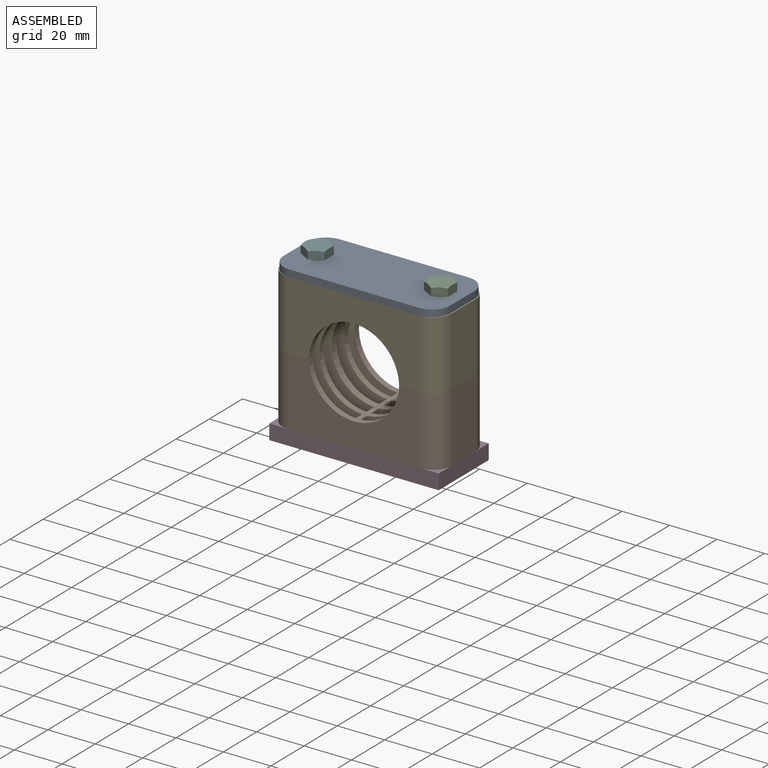
[diagram: assembled view]
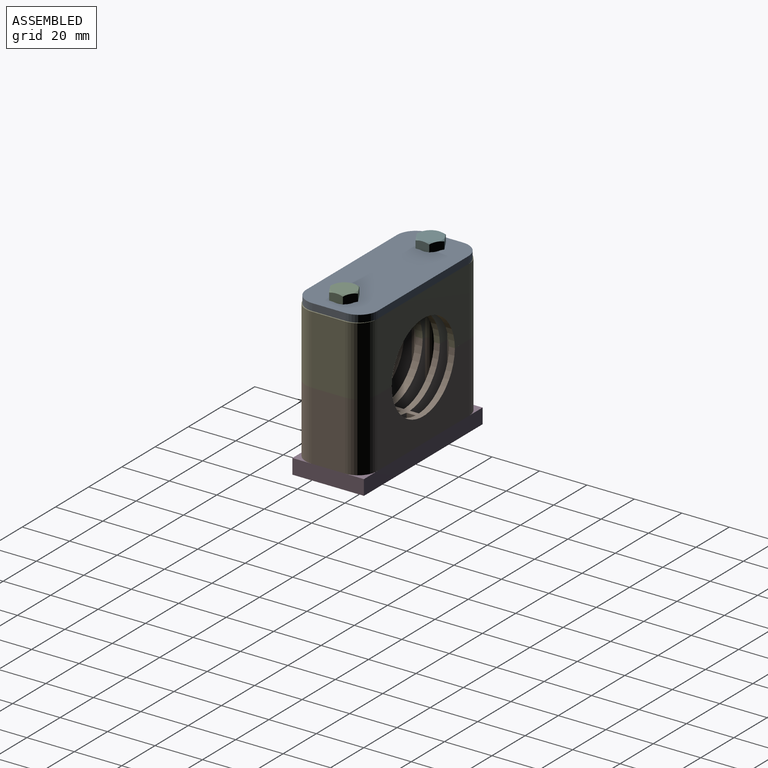
[diagram: assembled view, second angle]
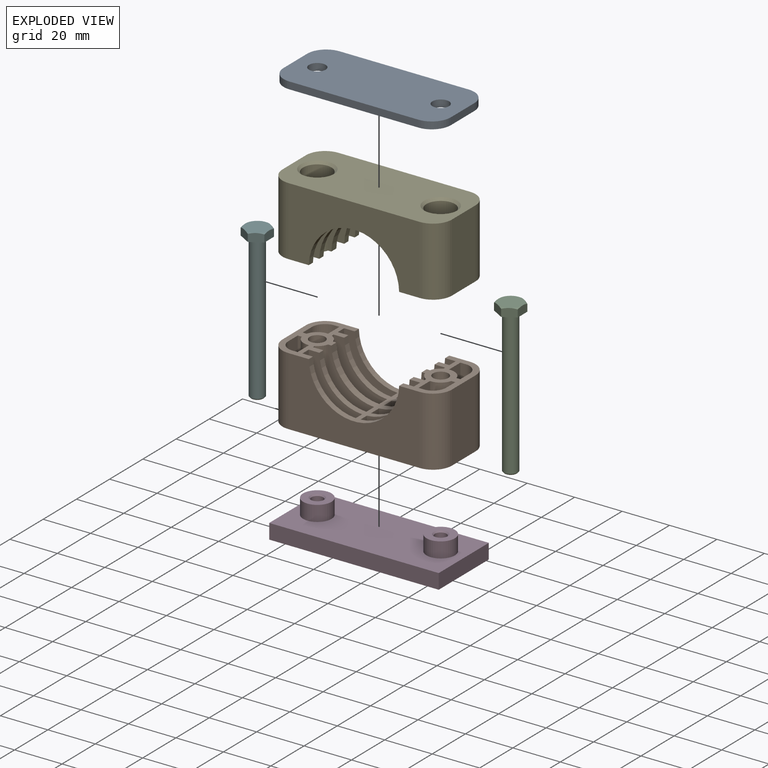
[diagram: exploded view]
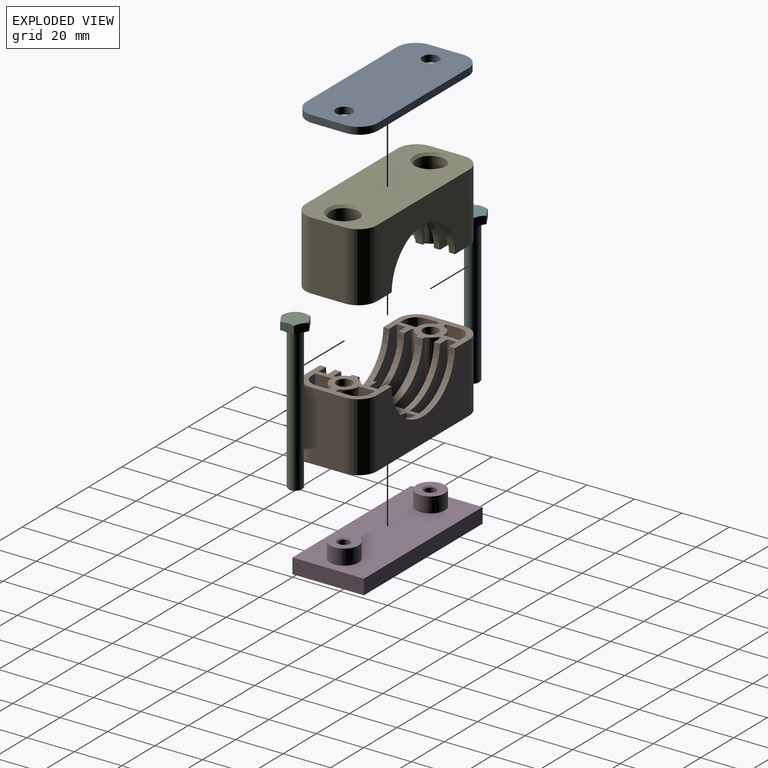
[diagram: exploded view, second angle]
ASSEMBLY  parts=6 mates=5
PART A: 12 faces, bbox 70.4x30.2x3 mm
  f0: cylinder r=3.5mm len=7mm, axis (0,0,-1), area 66mm2, adj f2,f3
  f1: cylinder r=3.5mm len=7mm, axis (0,0,-1), area 66mm2, adj f2,f3
  f2: plane 70.44x30.16mm, normal (0,0,1), area 1992.7mm2, adj f0,f1,f4,f5,f6,f7,f8,f9
  f3: plane 70.44x30.16mm, normal (0,0,-1), area 1992.7mm2, adj f0,f1,f4,f5,f6,f7,f8,f9
  f4: cylinder r=8mm len=8mm, axis (0,0,-1), area 37.7mm2, adj f2,f3,f5,f11
  f5: plane 54.44x3mm, normal (0,-1,0), area 163.3mm2, adj f2,f3,f4,f6
  f6: cylinder r=8mm len=8mm, axis (0,0,-1), area 37.7mm2, adj f2,f3,f5,f7
  f7: plane 14.16x3mm, normal (1,0,0), area 42.5mm2, adj f2,f3,f6,f8
  f8: cylinder r=8mm len=8mm, axis (0,0,-1), area 37.7mm2, adj f2,f3,f7,f9
  f9: plane 54.44x3mm, normal (0,1,0), area 163.3mm2, adj f2,f3,f8,f10
  f10: cylinder r=8mm len=8mm, axis (0,0,-1), area 37.7mm2, adj f2,f3,f9,f11
  f11: plane 14.16x3mm, normal (-1,0,0), area 42.5mm2, adj f2,f3,f4,f10
PART B: 108 faces, bbox 71.4x30.2x29 mm
  f0: cylinder r=3.25mm len=21.47mm, axis (0,0,1), area 438.4mm2, adj f10,f106
  f1: cylinder r=6mm len=12mm, axis (0,0,-1), area 245mm2, adj f5,f106
  f2: cylinder r=3.25mm len=21.47mm, axis (0,0,1), area 438.4mm2, adj f16,f105
  f3: cylinder r=6mm len=12mm, axis (0,0,-1), area 245mm2, adj f4,f105
  f4: cone r=6mm half-angle=45deg, axis (0,0,-1), area 57.8mm2, adj f3,f96
  f5: cone r=6mm half-angle=45deg, axis (0,0,-1), area 57.8mm2, adj f1,f96
  f6: cylinder r=5.75mm len=18.97mm, axis (0,0,1), area 152mm2, adj f10,f90,f91,f93
  f7: cylinder r=8.5mm len=7.72mm, axis (0,0,-1), area 68.4mm2, adj f89,f90,f92,f93
  f8: cylinder r=5.75mm len=18.97mm, axis (0,0,1), area 152mm2, adj f16,f67,f68,f71
  f9: cylinder r=8.5mm len=7.72mm, axis (0,0,-1), area 68.4mm2, adj f66,f67,f69,f71
  f10: plane 30.16x16.67mm, normal (0,0,1), area 261.4mm2, adj f0,f6,f29,f30,f31,f32,f45,f46
  f11: plane 22.5x3.83mm, normal (0,0,1), area 86.2mm2, adj f12,f13,f14,f15
  f12: plane 7.85x3.83mm, normal (-1,0,0), area 30.1mm2, adj f11,f14,f15,f107
  f13: plane 26.47x3.83mm, normal (1,0,0), area 101.4mm2, adj f11,f14,f15,f16
  f14: plane 26.47x22.5mm, normal (0,1,0), area 336.8mm2, adj f11,f12,f13,f16,f107
  f15: plane 26.47x22.5mm, normal (0,-1,0), area 336.8mm2, adj f11,f12,f13,f16,f107
  f16: plane 30.16x16.67mm, normal (0,0,1), area 261.4mm2, adj f2,f8,f13,f14,f15,f20,f21,f22
  f17: cylinder r=8.5mm len=7.72mm, axis (0,0,-1), area 68.4mm2, adj f18,f19,f20,f24
  f18: plane 8.09x7.72mm, normal (0,0,1), area 33.5mm2, adj f17,f20,f21,f22,f24
  f19: plane 7.72x7mm, normal (0,0,1), area 26mm2, adj f17,f20,f23,f24,f25
  f20: plane 26.47x6.85mm, normal (-1,0,0), area 160.7mm2, adj f16,f17,f18,f19,f22,f25
  f21: cylinder r=5.5mm len=26.47mm, axis (0,0,-1), area 228.7mm2, adj f16,f18,f22,f24
  f22: plane 26.47x2.22mm, normal (0,-1,0), area 58.7mm2, adj f16,f18,f20,f21
  f23: plane 18.97x1.67mm, normal (0,1,0), area 31.6mm2, adj f16,f19,f24,f25
  f24: plane 26.47x5.58mm, normal (1,0,0), area 125.3mm2, adj f16,f17,f18,f19,f21,f23
  f25: cylinder r=5.75mm len=18.97mm, axis (0,0,1), area 152mm2, adj f16,f19,f20,f23
  f26: plane 19.24x4.75mm, normal (0,0,1), area 83.6mm2, adj f27,f29,f30,f33
  f27: cylinder r=8.5mm len=7.5mm, axis (0,0,-1), area 41.4mm2, adj f26,f28,f29,f30
  f28: plane 5.87x4.75mm, normal (0,0,1), area 16mm2, adj f27,f29,f30,f31,f32
  f29: plane 26.47x19.45mm, normal (0,1,0), area 234.9mm2, adj f10,f26,f27,f28,f32,f33,f107
  f30: plane 26.47x22.5mm, normal (0,-1,0), area 312.3mm2, adj f10,f26,f27,f28,f31,f33,f107
  f31: plane 18.97x1.07mm, normal (-1,0,0), area 20.3mm2, adj f10,f28,f30,f32
  f32: cylinder r=5.75mm len=18.97mm, axis (0,0,1), area 93.5mm2, adj f10,f28,f29,f31
  f33: plane 7.85x4.75mm, normal (1,0,0), area 37.3mm2, adj f26,f29,f30,f107
  f34: plane 5.87x4.75mm, normal (0,0,1), area 16mm2, adj f35,f37,f38,f39,f40
  f35: cylinder r=8.5mm len=7.5mm, axis (0,0,-1), area 41.4mm2, adj f34,f36,f37,f39
  f36: plane 19.24x4.75mm, normal (0,0,1), area 83.6mm2, adj f35,f37,f39,f41
  f37: plane 26.47x22.5mm, normal (0,-1,0), area 312.3mm2, adj f16,f34,f35,f36,f38,f41,f107
  f38: plane 18.97x1.07mm, normal (1,0,0), area 20.3mm2, adj f16,f34,f37,f40
  f39: plane 26.47x19.45mm, normal (0,1,0), area 234.9mm2, adj f16,f34,f35,f36,f40,f41,f107
  f40: cylinder r=5.75mm len=18.97mm, axis (0,0,1), area 93.5mm2, adj f16,f34,f38,f39
  f41: plane 7.85x4.75mm, normal (-1,0,0), area 37.3mm2, adj f36,f37,f39,f107
  f42: cylinder r=8.5mm len=7.72mm, axis (0,0,-1), area 68.4mm2, adj f43,f44,f47,f50
  f43: plane 8.09x7.72mm, normal (0,0,1), area 33.5mm2, adj f42,f45,f46,f47,f50
  f44: plane 7.72x7mm, normal (0,0,1), area 26mm2, adj f42,f47,f48,f49,f50
  f45: plane 26.47x2.22mm, normal (0,-1,0), area 58.7mm2, adj f10,f43,f46,f47
  f46: cylinder r=5.5mm len=26.47mm, axis (0,0,1), area 228.7mm2, adj f10,f43,f45,f50
  f47: plane 26.47x6.85mm, normal (1,0,0), area 160.7mm2, adj f10,f42,f43,f44,f45,f49
  f48: plane 18.97x1.67mm, normal (0,1,0), area 31.6mm2, adj f10,f44,f49,f50
  f49: cylinder r=5.75mm len=18.97mm, axis (0,0,1), area 152mm2, adj f10,f44,f47,f48
  f50: plane 26.47x5.58mm, normal (-1,0,0), area 125.3mm2, adj f10,f42,f43,f44,f46,f48
  f51: plane 22.5x3.83mm, normal (0,0,1), area 86.2mm2, adj f52,f53,f54,f55
  f52: plane 26.47x3.83mm, normal (-1,0,0), area 101.4mm2, adj f10,f51,f54,f55
  f53: plane 7.85x3.83mm, normal (1,0,0), area 30.1mm2, adj f51,f54,f55,f107
  f54: plane 26.47x22.5mm, normal (0,1,0), area 336.8mm2, adj f10,f51,f52,f53,f107
  f55: plane 26.47x22.5mm, normal (0,-1,0), area 336.8mm2, adj f10,f51,f52,f53,f107
  f56: plane 22.5x3.83mm, normal (0,0,1), area 86.2mm2, adj f57,f58,f59,f60
  f57: plane 26.47x3.83mm, normal (-1,0,0), area 101.4mm2, adj f10,f56,f59,f60
  f58: plane 7.85x3.83mm, normal (1,0,0), area 30.1mm2, adj f56,f59,f60,f107
  f59: plane 26.47x22.5mm, normal (0,-1,0), area 336.8mm2, adj f10,f56,f57,f58,f107
  f60: plane 26.47x22.5mm, normal (0,1,0), area 336.8mm2, adj f10,f56,f57,f58,f107
  f61: plane 22.5x3.83mm, normal (0,0,1), area 86.2mm2, adj f62,f63,f64,f65
  f62: plane 7.85x3.83mm, normal (-1,0,0), area 30.1mm2, adj f61,f64,f65,f107
  f63: plane 26.47x3.83mm, normal (1,0,0), area 101.4mm2, adj f16,f61,f64,f65
  f64: plane 26.47x22.5mm, normal (0,-1,0), area 336.8mm2, adj f16,f61,f62,f63,f107
  f65: plane 26.47x22.5mm, normal (0,1,0), area 336.8mm2, adj f16,f61,f62,f63,f107
  f66: plane 8.09x7.72mm, normal (0,0,1), area 33.5mm2, adj f9,f69,f70,f71,f72
  f67: plane 7.72x7mm, normal (0,0,1), area 26mm2, adj f8,f9,f68,f69,f71
  f68: plane 18.97x1.67mm, normal (0,-1,0), area 31.6mm2, adj f8,f16,f67,f69
  f69: plane 26.47x5.58mm, normal (1,0,0), area 125.3mm2, adj f9,f16,f66,f67,f68,f70
  f70: cylinder r=5.5mm len=26.47mm, axis (0,0,1), area 228.7mm2, adj f16,f66,f69,f72
  f71: plane 26.47x6.85mm, normal (-1,0,0), area 160.7mm2, adj f8,f9,f16,f66,f67,f72
  f72: plane 26.47x2.22mm, normal (0,1,0), area 58.7mm2, adj f16,f66,f70,f71
  f73: plane 5.87x4.75mm, normal (0,0,1), area 16mm2, adj f74,f76,f77,f79,f80
  f74: cylinder r=8.5mm len=7.5mm, axis (0,0,-1), area 41.4mm2, adj f73,f75,f76,f79
  f75: plane 19.24x4.75mm, normal (0,0,1), area 83.6mm2, adj f74,f76,f78,f79
  f76: plane 26.47x19.45mm, normal (0,-1,0), area 234.9mm2, adj f10,f73,f74,f75,f77,f78,f107
  f77: cylinder r=5.75mm len=18.97mm, axis (0,0,1), area 93.5mm2, adj f10,f73,f76,f80
  f78: plane 7.85x4.75mm, normal (1,0,0), area 37.3mm2, adj f75,f76,f79,f107
  f79: plane 26.47x22.5mm, normal (0,1,0), area 312.3mm2, adj f10,f73,f74,f75,f78,f80,f107
  f80: plane 18.97x1.07mm, normal (-1,0,0), area 20.3mm2, adj f10,f73,f77,f79
  f81: cylinder r=8.5mm len=7.5mm, axis (0,0,-1), area 41.4mm2, adj f82,f83,f87,f88
  f82: plane 5.87x4.75mm, normal (0,0,1), area 16mm2, adj f81,f84,f85,f87,f88
  f83: plane 19.24x4.75mm, normal (0,0,1), area 83.6mm2, adj f81,f86,f87,f88
  f84: cylinder r=5.75mm len=18.97mm, axis (0,0,1), area 93.5mm2, adj f16,f82,f85,f88
  f85: plane 18.97x1.07mm, normal (1,0,0), area 20.3mm2, adj f16,f82,f84,f87
  f86: plane 7.85x4.75mm, normal (-1,0,0), area 37.3mm2, adj f83,f87,f88,f107
  f87: plane 26.47x22.5mm, normal (0,1,0), area 312.3mm2, adj f16,f81,f82,f83,f85,f86,f107
  f88: plane 26.47x19.45mm, normal (0,-1,0), area 234.9mm2, adj f16,f81,f82,f83,f84,f86,f107
  f89: plane 8.09x7.72mm, normal (0,0,1), area 33.5mm2, adj f7,f92,f93,f94,f95
  f90: plane 7.72x7mm, normal (0,0,1), area 26mm2, adj f6,f7,f91,f92,f93
  f91: plane 18.97x1.67mm, normal (0,-1,0), area 31.6mm2, adj f6,f10,f90,f92
  f92: plane 26.47x5.58mm, normal (-1,0,0), area 125.3mm2, adj f7,f10,f89,f90,f91,f94
  f93: plane 26.47x6.85mm, normal (1,0,0), area 160.7mm2, adj f6,f7,f10,f89,f90,f95
  f94: cylinder r=5.5mm len=26.47mm, axis (0,0,-1), area 228.7mm2, adj f10,f89,f92,f95
  f95: plane 26.47x2.22mm, normal (0,1,0), area 58.7mm2, adj f10,f89,f93,f94
  f96: plane 71.44x30.16mm, normal (0,0,-1), area 1791.9mm2, adj f4,f5,f97,f98,f99,f100,f101,f102
  f97: cylinder r=8mm len=28.97mm, axis (0,0,-1), area 364mm2, adj f10,f96,f99,f103
  f98: cylinder r=8mm len=28.97mm, axis (0,0,1), area 364mm2, adj f16,f96,f99,f104
  f99: plane 55.44x28.97mm, normal (0,-1,0), area 1051.1mm2, adj f10,f16,f96,f97,f98,f107
  f100: cylinder r=8mm len=28.97mm, axis (0,0,1), area 364mm2, adj f10,f96,f102,f103
  f101: cylinder r=8mm len=28.97mm, axis (0,0,-1), area 364mm2, adj f16,f96,f102,f104
  f102: plane 55.44x28.97mm, normal (0,1,0), area 1051.1mm2, adj f10,f16,f96,f100,f101,f107
  f103: plane 28.97x14.16mm, normal (1,0,0), area 410.3mm2, adj f10,f96,f97,f100
  f104: plane 28.97x14.16mm, normal (-1,0,0), area 410.3mm2, adj f16,f96,f98,f101
  f105: plane 12x12mm, normal (0,0,-1), area 79.9mm2, adj f2,f3
  f106: plane 12x12mm, normal (0,0,-1), area 79.9mm2, adj f0,f1
  f107: cylinder r=19.05mm len=38.09mm, axis (0,-1,0), area 802mm2, adj f10,f12,f14,f15,f16,f29,f30,f33
PART C: 19 faces, bbox 12x12x65.2 mm
  f0: cone r=5mm half-angle=60deg, axis (0,0,-1), area 2.5mm2, adj f8,f9,f18
  f1: cone r=2.5mm half-angle=45deg, axis (0,0,1), area 12.2mm2, adj f2,f10
  f2: cylinder r=3mm len=60.24mm, axis (0,0,-1), area 1135.5mm2, adj f1,f12
  f3: cylinder r=4.45mm len=8.9mm, axis (0,0,-1), area 14mm2, adj f11,f12
  f4: plane 6.25x3.98mm, normal (-1,0,0), area 19.3mm2, adj f5,f9,f11,f14,f15
  f5: plane 5.47x3.97mm, normal (-0.5,0.87,0), area 19.3mm2, adj f4,f6,f11,f13,f14
  f6: plane 5.47x3.97mm, normal (0.5,0.87,0), area 19.3mm2, adj f5,f7,f11,f13,f17
  f7: plane 6.25x3.98mm, normal (1,0,0), area 19.3mm2, adj f6,f8,f11,f16,f17
  f8: plane 5.47x3.97mm, normal (0.5,-0.87,0), area 19.3mm2, adj f0,f7,f9,f11,f16
  f9: plane 5.47x3.97mm, normal (-0.5,-0.87,0), area 19.3mm2, adj f0,f4,f8,f11,f15
  f10: plane 5x5mm, normal (0,0,-1), area 19.6mm2, adj f1
  f11: plane 11.55x10mm, normal (0,0,-1), area 24.4mm2, adj f3,f4,f5,f6,f7,f8,f9
  f12: plane 8.9x8.9mm, normal (0,0,-1), area 33.9mm2, adj f2,f3
  f13: cone r=5mm half-angle=60deg, axis (0,0,-1), area 2.5mm2, adj f5,f6,f18
  f14: cone r=5mm half-angle=60deg, axis (0,0,-1), area 2.5mm2, adj f4,f5,f18
  f15: cone r=5mm half-angle=60deg, axis (0,0,-1), area 2.5mm2, adj f4,f9,f18
  f16: cone r=5mm half-angle=60deg, axis (0,0,-1), area 2.5mm2, adj f7,f8,f18
  f17: cone r=5mm half-angle=60deg, axis (0,0,-1), area 2.5mm2, adj f6,f7,f18
  f18: plane 10x10mm, normal (0,0,1), area 78.5mm2, adj f0,f13,f14,f15,f16,f17
PART D: 14 faces, bbox 71.4x30.2x12.9 mm
  f0: cone r=2.46mm half-angle=45deg, axis (0,0,1), area 13.1mm2, adj f5,f12
  f1: cone r=2.46mm half-angle=45deg, axis (0,0,1), area 13.1mm2, adj f4,f13
  f2: cylinder r=6mm len=12mm, axis (0,0,-1), area 245mm2, adj f6,f13
  f3: cylinder r=6mm len=12mm, axis (0,0,-1), area 245mm2, adj f6,f12
  f4: cylinder r=2.46mm len=12.31mm, axis (0,0,1), area 190.2mm2, adj f1,f7
  f5: cylinder r=2.46mm len=12.31mm, axis (0,0,1), area 190.2mm2, adj f0,f7
  f6: plane 71.44x30.16mm, normal (0,0,1), area 1928.5mm2, adj f2,f3,f8,f9,f10,f11
  f7: plane 71.44x30.16mm, normal (0,0,-1), area 2116.7mm2, adj f4,f5,f8,f9,f10,f11
  f8: plane 30.16x6.35mm, normal (-1,0,0), area 191.5mm2, adj f6,f7,f9,f11
  f9: plane 71.44x6.35mm, normal (0,1,0), area 453.6mm2, adj f6,f7,f8,f10
  f10: plane 30.16x6.35mm, normal (1,0,0), area 191.5mm2, adj f6,f7,f9,f11
  f11: plane 71.44x6.35mm, normal (0,-1,0), area 453.6mm2, adj f6,f7,f8,f10
  f12: plane 12x12mm, normal (0,0,1), area 84.8mm2, adj f0,f3
  f13: plane 12x12mm, normal (0,0,1), area 84.8mm2, adj f1,f2
PART E: 108 faces, bbox 71.4x30.2x29 mm
  f0: cylinder r=8.5mm len=7.72mm, axis (0,0,1), area 68.4mm2, adj f97,f98,f100,f101
  f1: cylinder r=5.75mm len=18.97mm, axis (0,0,1), area 152mm2, adj f22,f97,f99,f101
  f2: cylinder r=8.5mm len=7.72mm, axis (0,0,1), area 68.4mm2, adj f73,f75,f77,f78
  f3: cylinder r=5.75mm len=18.97mm, axis (0,0,1), area 152mm2, adj f10,f73,f76,f78
  f4: cone r=6mm half-angle=45deg, axis (0,0,1), area 57.8mm2, adj f7,f21
  f5: cone r=6mm half-angle=45deg, axis (0,0,1), area 57.8mm2, adj f6,f21
  f6: cylinder r=6mm len=12mm, axis (0,0,1), area 245mm2, adj f5,f20
  f7: cylinder r=6mm len=12mm, axis (0,0,1), area 245mm2, adj f4,f19
  f8: cylinder r=3.25mm len=21.47mm, axis (0,0,1), area 438.4mm2, adj f10,f19
  f9: cylinder r=3.25mm len=21.47mm, axis (0,0,1), area 438.4mm2, adj f20,f22
  f10: plane 30.16x16.67mm, normal (0,0,-1), area 261.4mm2, adj f3,f8,f11,f13,f14,f17,f18,f23
  f11: plane 28.97x14.16mm, normal (-1,0,0), area 410.3mm2, adj f10,f17,f18,f21
  f12: plane 28.97x14.16mm, normal (1,0,0), area 410.3mm2, adj f15,f16,f21,f22
  f13: plane 55.44x28.97mm, normal (0,-1,0), area 1051.1mm2, adj f10,f15,f18,f21,f22,f107
  f14: plane 55.44x28.97mm, normal (0,1,0), area 1051.1mm2, adj f10,f16,f17,f21,f22,f107
  f15: cylinder r=8mm len=28.97mm, axis (0,0,-1), area 364mm2, adj f12,f13,f21,f22
  f16: cylinder r=8mm len=28.97mm, axis (0,0,1), area 364mm2, adj f12,f14,f21,f22
  f17: cylinder r=8mm len=28.97mm, axis (0,0,-1), area 364mm2, adj f10,f11,f14,f21
  f18: cylinder r=8mm len=28.97mm, axis (0,0,1), area 364mm2, adj f10,f11,f13,f21
  f19: plane 12x12mm, normal (0,0,1), area 79.9mm2, adj f7,f8
  f20: plane 12x12mm, normal (0,0,1), area 79.9mm2, adj f6,f9
  f21: plane 71.44x30.16mm, normal (0,0,1), area 1791.9mm2, adj f4,f5,f11,f12,f13,f14,f15,f16
  f22: plane 30.16x16.67mm, normal (0,0,-1), area 261.4mm2, adj f1,f9,f12,f13,f14,f15,f16,f33
  f23: cylinder r=5.75mm len=18.97mm, axis (0,0,1), area 152mm2, adj f10,f27,f28,f29
  f24: plane 26.47x5.58mm, normal (1,0,0), area 125.3mm2, adj f10,f26,f28,f29,f30,f31
  f25: plane 26.47x2.22mm, normal (0,-1,0), area 58.7mm2, adj f10,f26,f27,f30
  f26: cylinder r=5.5mm len=26.47mm, axis (0,0,-1), area 228.7mm2, adj f10,f24,f25,f30
  f27: plane 26.47x6.85mm, normal (-1,0,0), area 160.7mm2, adj f10,f23,f25,f29,f30,f31
  f28: plane 18.97x1.67mm, normal (0,1,0), area 31.6mm2, adj f10,f23,f24,f29
  f29: plane 7.72x7mm, normal (0,0,-1), area 26mm2, adj f23,f24,f27,f28,f31
  f30: plane 8.09x7.72mm, normal (0,0,-1), area 33.5mm2, adj f24,f25,f26,f27,f31
  f31: cylinder r=8.5mm len=7.72mm, axis (0,0,1), area 68.4mm2, adj f24,f27,f29,f30
  f32: plane 7.85x4.75mm, normal (1,0,0), area 37.3mm2, adj f35,f36,f37,f107
  f33: cylinder r=5.75mm len=18.97mm, axis (0,0,1), area 93.5mm2, adj f22,f34,f36,f38
  f34: plane 18.97x1.07mm, normal (-1,0,0), area 20.3mm2, adj f22,f33,f35,f38
  f35: plane 26.47x22.5mm, normal (0,-1,0), area 312.3mm2, adj f22,f32,f34,f37,f38,f39,f107
  f36: plane 26.47x19.45mm, normal (0,1,0), area 234.9mm2, adj f22,f32,f33,f37,f38,f39,f107
  f37: plane 19.24x4.75mm, normal (0,0,-1), area 83.6mm2, adj f32,f35,f36,f39
  f38: plane 5.87x4.75mm, normal (0,0,-1), area 16mm2, adj f33,f34,f35,f36,f39
  f39: cylinder r=8.5mm len=7.5mm, axis (0,0,1), area 41.4mm2, adj f35,f36,f37,f38
  f40: plane 7.85x4.75mm, normal (-1,0,0), area 37.3mm2, adj f43,f44,f45,f107
  f41: cylinder r=5.75mm len=18.97mm, axis (0,0,1), area 93.5mm2, adj f10,f42,f44,f47
  f42: plane 18.97x1.07mm, normal (1,0,0), area 20.3mm2, adj f10,f41,f43,f47
  f43: plane 26.47x22.5mm, normal (0,-1,0), area 312.3mm2, adj f10,f40,f42,f45,f46,f47,f107
  f44: plane 26.47x19.45mm, normal (0,1,0), area 234.9mm2, adj f10,f40,f41,f45,f46,f47,f107
  f45: plane 19.24x4.75mm, normal (0,0,-1), area 83.6mm2, adj f40,f43,f44,f46
  f46: cylinder r=8.5mm len=7.5mm, axis (0,0,1), area 41.4mm2, adj f43,f44,f45,f47
  f47: plane 5.87x4.75mm, normal (0,0,-1), area 16mm2, adj f41,f42,f43,f44,f46
  f48: plane 26.47x5.58mm, normal (-1,0,0), area 125.3mm2, adj f22,f51,f53,f54,f55,f56
  f49: cylinder r=5.75mm len=18.97mm, axis (0,0,1), area 152mm2, adj f22,f50,f53,f54
  f50: plane 26.47x6.85mm, normal (1,0,0), area 160.7mm2, adj f22,f49,f52,f54,f55,f56
  f51: cylinder r=5.5mm len=26.47mm, axis (0,0,1), area 228.7mm2, adj f22,f48,f52,f55
  f52: plane 26.47x2.22mm, normal (0,-1,0), area 58.7mm2, adj f22,f50,f51,f55
  f53: plane 18.97x1.67mm, normal (0,1,0), area 31.6mm2, adj f22,f48,f49,f54
  f54: plane 7.72x7mm, normal (0,0,-1), area 26mm2, adj f48,f49,f50,f53,f56
  f55: plane 8.09x7.72mm, normal (0,0,-1), area 33.5mm2, adj f48,f50,f51,f52,f56
  f56: cylinder r=8.5mm len=7.72mm, axis (0,0,1), area 68.4mm2, adj f48,f50,f54,f55
  f57: plane 26.47x22.5mm, normal (0,-1,0), area 336.8mm2, adj f22,f59,f60,f61,f107
  f58: plane 26.47x22.5mm, normal (0,1,0), area 336.8mm2, adj f22,f59,f60,f61,f107
  f59: plane 26.47x3.83mm, normal (-1,0,0), area 101.4mm2, adj f22,f57,f58,f61
  f60: plane 7.85x3.83mm, normal (1,0,0), area 30.1mm2, adj f57,f58,f61,f107
  f61: plane 22.5x3.83mm, normal (0,0,-1), area 86.2mm2, adj f57,f58,f59,f60
  f62: plane 26.47x22.5mm, normal (0,1,0), area 336.8mm2, adj f22,f64,f65,f66,f107
  f63: plane 26.47x22.5mm, normal (0,-1,0), area 336.8mm2, adj f22,f64,f65,f66,f107
  f64: plane 7.85x3.83mm, normal (1,0,0), area 30.1mm2, adj f62,f63,f66,f107
  f65: plane 26.47x3.83mm, normal (-1,0,0), area 101.4mm2, adj f22,f62,f63,f66
  f66: plane 22.5x3.83mm, normal (0,0,-1), area 86.2mm2, adj f62,f63,f64,f65
  f67: plane 26.47x22.5mm, normal (0,1,0), area 336.8mm2, adj f10,f69,f70,f71,f107
  f68: plane 26.47x22.5mm, normal (0,-1,0), area 336.8mm2, adj f10,f69,f70,f71,f107
  f69: plane 26.47x3.83mm, normal (1,0,0), area 101.4mm2, adj f10,f67,f68,f71
  f70: plane 7.85x3.83mm, normal (-1,0,0), area 30.1mm2, adj f67,f68,f71,f107
  f71: plane 22.5x3.83mm, normal (0,0,-1), area 86.2mm2, adj f67,f68,f69,f70
  f72: plane 26.47x2.22mm, normal (0,1,0), area 58.7mm2, adj f10,f73,f74,f77
  f73: plane 26.47x6.85mm, normal (-1,0,0), area 160.7mm2, adj f2,f3,f10,f72,f77,f78
  f74: cylinder r=5.5mm len=26.47mm, axis (0,0,1), area 228.7mm2, adj f10,f72,f75,f77
  f75: plane 26.47x5.58mm, normal (1,0,0), area 125.3mm2, adj f2,f10,f74,f76,f77,f78
  f76: plane 18.97x1.67mm, normal (0,-1,0), area 31.6mm2, adj f3,f10,f75,f78
  f77: plane 8.09x7.72mm, normal (0,0,-1), area 33.5mm2, adj f2,f72,f73,f74,f75
  f78: plane 7.72x7mm, normal (0,0,-1), area 26mm2, adj f2,f3,f73,f75,f76
  f79: plane 18.97x1.07mm, normal (-1,0,0), area 20.3mm2, adj f22,f80,f82,f85
  f80: plane 26.47x22.5mm, normal (0,1,0), area 312.3mm2, adj f22,f79,f81,f84,f85,f86,f107
  f81: plane 7.85x4.75mm, normal (1,0,0), area 37.3mm2, adj f80,f83,f86,f107
  f82: cylinder r=5.75mm len=18.97mm, axis (0,0,1), area 93.5mm2, adj f22,f79,f83,f85
  f83: plane 26.47x19.45mm, normal (0,-1,0), area 234.9mm2, adj f22,f81,f82,f84,f85,f86,f107
  f84: cylinder r=8.5mm len=7.5mm, axis (0,0,1), area 41.4mm2, adj f80,f83,f85,f86
  f85: plane 5.87x4.75mm, normal (0,0,-1), area 16mm2, adj f79,f80,f82,f83,f84
  f86: plane 19.24x4.75mm, normal (0,0,-1), area 83.6mm2, adj f80,f81,f83,f84
  f87: plane 26.47x19.45mm, normal (0,-1,0), area 234.9mm2, adj f10,f90,f91,f92,f93,f94,f107
  f88: plane 26.47x22.5mm, normal (0,1,0), area 312.3mm2, adj f10,f89,f91,f92,f93,f94,f107
  f89: plane 18.97x1.07mm, normal (1,0,0), area 20.3mm2, adj f10,f88,f90,f92
  f90: cylinder r=5.75mm len=18.97mm, axis (0,0,1), area 93.5mm2, adj f10,f87,f89,f92
  f91: plane 7.85x4.75mm, normal (-1,0,0), area 37.3mm2, adj f87,f88,f94,f107
  f92: plane 5.87x4.75mm, normal (0,0,-1), area 16mm2, adj f87,f88,f89,f90,f93
  f93: cylinder r=8.5mm len=7.5mm, axis (0,0,1), area 41.4mm2, adj f87,f88,f92,f94
  f94: plane 19.24x4.75mm, normal (0,0,-1), area 83.6mm2, adj f87,f88,f91,f93
  f95: plane 26.47x2.22mm, normal (0,1,0), area 58.7mm2, adj f22,f96,f97,f100
  f96: cylinder r=5.5mm len=26.47mm, axis (0,0,-1), area 228.7mm2, adj f22,f95,f98,f100
  f97: plane 26.47x6.85mm, normal (1,0,0), area 160.7mm2, adj f0,f1,f22,f95,f100,f101
  f98: plane 26.47x5.58mm, normal (-1,0,0), area 125.3mm2, adj f0,f22,f96,f99,f100,f101
  f99: plane 18.97x1.67mm, normal (0,-1,0), area 31.6mm2, adj f1,f22,f98,f101
  f100: plane 8.09x7.72mm, normal (0,0,-1), area 33.5mm2, adj f0,f95,f96,f97,f98
  f101: plane 7.72x7mm, normal (0,0,-1), area 26mm2, adj f0,f1,f97,f98,f99
  f102: plane 26.47x22.5mm, normal (0,-1,0), area 336.8mm2, adj f10,f104,f105,f106,f107
  f103: plane 26.47x22.5mm, normal (0,1,0), area 336.8mm2, adj f10,f104,f105,f106,f107
  f104: plane 7.85x3.83mm, normal (-1,0,0), area 30.1mm2, adj f102,f103,f106,f107
  f105: plane 26.47x3.83mm, normal (1,0,0), area 101.4mm2, adj f10,f102,f103,f106
  f106: plane 22.5x3.83mm, normal (0,0,-1), area 86.2mm2, adj f102,f103,f104,f105
  f107: cylinder r=19.05mm len=38.09mm, axis (0,-1,0), area 802mm2, adj f10,f13,f14,f22,f32,f35,f36,f40
PART F: 19 faces, bbox 12x12x65.2 mm
  f0: cone r=5mm half-angle=60deg, axis (0,0,-1), area 2.5mm2, adj f8,f9,f18
  f1: cone r=2.5mm half-angle=45deg, axis (0,0,1), area 12.2mm2, adj f2,f10
  f2: cylinder r=3mm len=60.24mm, axis (0,0,-1), area 1135.5mm2, adj f1,f12
  f3: cylinder r=4.45mm len=8.9mm, axis (0,0,-1), area 14mm2, adj f11,f12
  f4: plane 6.25x3.98mm, normal (1,0,0), area 19.3mm2, adj f5,f9,f11,f14,f15
  f5: plane 5.47x3.97mm, normal (0.5,0.87,0), area 19.3mm2, adj f4,f6,f11,f13,f14
  f6: plane 5.47x3.97mm, normal (-0.5,0.87,0), area 19.3mm2, adj f5,f7,f11,f13,f17
  f7: plane 6.25x3.98mm, normal (-1,0,0), area 19.3mm2, adj f6,f8,f11,f16,f17
  f8: plane 5.47x3.97mm, normal (-0.5,-0.87,0), area 19.3mm2, adj f0,f7,f9,f11,f16
  f9: plane 5.47x3.97mm, normal (0.5,-0.87,0), area 19.3mm2, adj f0,f4,f8,f11,f15
  f10: plane 5x5mm, normal (0,0,-1), area 19.6mm2, adj f1
  f11: plane 11.55x10mm, normal (0,0,-1), area 24.4mm2, adj f3,f4,f5,f6,f7,f8,f9
  f12: plane 8.9x8.9mm, normal (0,0,-1), area 33.9mm2, adj f2,f3
  f13: cone r=5mm half-angle=60deg, axis (0,0,-1), area 2.5mm2, adj f5,f6,f18
  f14: cone r=5mm half-angle=60deg, axis (0,0,-1), area 2.5mm2, adj f4,f5,f18
  f15: cone r=5mm half-angle=60deg, axis (0,0,-1), area 2.5mm2, adj f4,f9,f18
  f16: cone r=5mm half-angle=60deg, axis (0,0,-1), area 2.5mm2, adj f7,f8,f18
  f17: cone r=5mm half-angle=60deg, axis (0,0,-1), area 2.5mm2, adj f6,f7,f18
  f18: plane 10x10mm, normal (0,0,1), area 78.5mm2, adj f0,f13,f14,f15,f16,f17
PLACE A t=(12.08,56.46,47.7)mm
PLACE B t=(12.08,56.46,48.5)mm
PLACE C t=(64.08,56.46,47.7)mm
PLACE D t=(12.08,56.46,48.5)mm
PLACE E t=(12.08,56.46,47.7)mm
PLACE F t=(-39.92,56.46,47.7)mm
MATE fastened B.f2 <-> E.f2  axis (0,0,1) through (-13.92,56.46,48.1)mm
MATE fastened B.f96 <-> D.f6  axis (0,0,-1) through (12.08,56.46,19.13)mm
MATE fastened E.f21 <-> A.f3  axis (0,0,1) through (12.08,56.46,77.07)mm
MATE fastened A.f0 <-> C.f0  axis (0,0,-1) through (38.08,56.46,80.07)mm
MATE fastened A.f1 <-> F.f0  axis (0,0,-1) through (-13.92,56.46,80.07)mm
